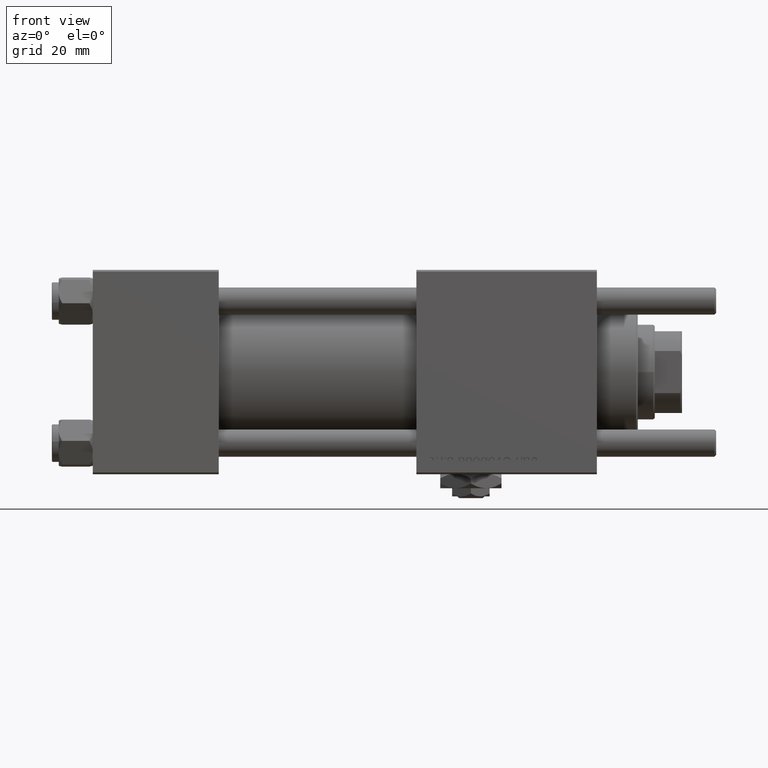
[diagram: clean part render]
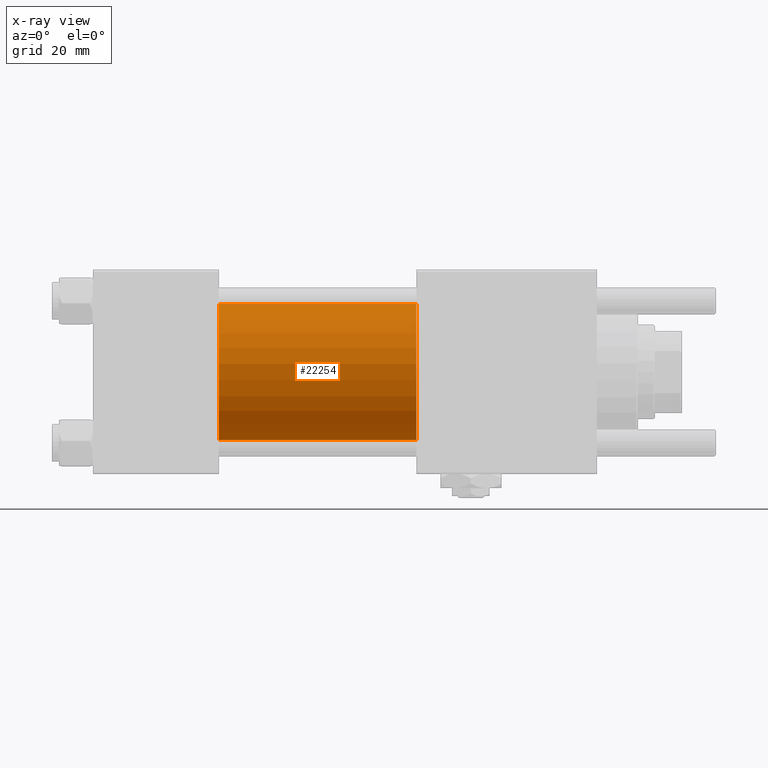
[diagram: x-ray — body ghosted, one internal face saturated and labeled with its STEP entity id]
A machine part, front view, then the same camera in x-ray: the body is ghosted and one INTERNAL B-rep face — a face not visible from any outside direction — is saturated and labeled: STEP entity #22254.
In plain terms, the highlighted cylindrical surface (partial cylindrical patch) has radius 20 mm, axis along (-1, -0, -0).
Its self-contained STEP definition (entity closure, byte-faithful):
#1114 = VERTEX_POINT ( 'NONE', #39013 ) ;
#2021 = DIRECTION ( 'NONE',  ( 0.000000000000000000, 0.000000000000000000, -1.000000000000000000 ) ) ;
#2828 = EDGE_CURVE ( 'NONE', #56042, #22301, #45035, .T. ) ;
#4297 = CARTESIAN_POINT ( 'NONE',  ( 95.00000000000000000, -1.527916156705046464E-16, -20.00000000000000000 ) ) ;
#6861 = DIRECTION ( 'NONE',  ( 1.000000000000000000, 0.000000000000000000, 0.000000000000000000 ) ) ;
#7852 = ORIENTED_EDGE ( 'NONE', *, *, #39973, .F. ) ;
#7976 = VECTOR ( 'NONE', #55148, 1000.000000000000000 ) ;
#10617 = CARTESIAN_POINT ( 'NONE',  ( 95.00000000000000000, -2.602085213965210642E-15, 0.000000000000000000 ) ) ;
#11791 = CARTESIAN_POINT ( 'NONE',  ( 37.00000000000000000, -2.602085213965210642E-15, 0.000000000000000000 ) ) ;
#12192 = DIRECTION ( 'NONE',  ( 0.000000000000000000, 0.000000000000000000, -1.000000000000000000 ) ) ;
#12821 = ORIENTED_EDGE ( 'NONE', *, *, #57076, .T. ) ;
#14503 = CYLINDRICAL_SURFACE ( 'NONE', #35336, 20.00000000000000000 ) ;
#15661 = DIRECTION ( 'NONE',  ( -1.000000000000000000, -0.000000000000000000, -0.000000000000000000 ) ) ;
#18440 = CIRCLE ( 'NONE', #51481, 20.00000000000000000 ) ;
#19337 = CARTESIAN_POINT ( 'NONE',  ( 95.00000000000000000, -2.602085213965210642E-15, 20.00000000000000000 ) ) ;
#19811 = DIRECTION ( 'NONE',  ( 0.000000000000000000, 0.000000000000000000, 1.000000000000000000 ) ) ;
#21095 = CARTESIAN_POINT ( 'NONE',  ( 95.00000000000000000, -2.602085213965210642E-15, 0.000000000000000000 ) ) ;
#21303 = ORIENTED_EDGE ( 'NONE', *, *, #2828, .T. ) ;
#21735 = AXIS2_PLACEMENT_3D ( 'NONE', #21095, #6861, #12192 ) ;
#22254 = ADVANCED_FACE ( 'NONE', ( #55044 ), #14503, .F. ) ;
#22301 = VERTEX_POINT ( 'NONE', #33691 ) ;
#26990 = CARTESIAN_POINT ( 'NONE',  ( 95.00000000000000000, -1.527916156705046464E-16, -20.00000000000000000 ) ) ;
#33691 = CARTESIAN_POINT ( 'NONE',  ( 37.00000000000000000, -1.527916156705046464E-16, -20.00000000000000000 ) ) ;
#34989 = ORIENTED_EDGE ( 'NONE', *, *, #37351, .F. ) ;
#35336 = AXIS2_PLACEMENT_3D ( 'NONE', #10617, #15661, #19811 ) ;
#37351 = EDGE_CURVE ( 'NONE', #1114, #52487, #54561, .T. ) ;
#39013 = CARTESIAN_POINT ( 'NONE',  ( 95.00000000000000000, -2.602085213965210642E-15, 20.00000000000000000 ) ) ;
#39973 = EDGE_CURVE ( 'NONE', #52487, #22301, #18440, .T. ) ;
#41164 = CARTESIAN_POINT ( 'NONE',  ( 37.00000000000000000, -2.602085213965210642E-15, 20.00000000000000000 ) ) ;
#45035 = LINE ( 'NONE', #26990, #58503 ) ;
#47596 = DIRECTION ( 'NONE',  ( 1.000000000000000000, 0.000000000000000000, 0.000000000000000000 ) ) ;
#50619 = EDGE_LOOP ( 'NONE', ( #12821, #21303, #7852, #34989 ) ) ;
#51481 = AXIS2_PLACEMENT_3D ( 'NONE', #11791, #47596, #2021 ) ;
#52487 = VERTEX_POINT ( 'NONE', #41164 ) ;
#53636 = DIRECTION ( 'NONE',  ( -1.000000000000000000, -0.000000000000000000, -0.000000000000000000 ) ) ;
#54561 = LINE ( 'NONE', #19337, #7976 ) ;
#55044 = FACE_OUTER_BOUND ( 'NONE', #50619, .T. ) ;
#55148 = DIRECTION ( 'NONE',  ( -1.000000000000000000, -0.000000000000000000, -0.000000000000000000 ) ) ;
#56042 = VERTEX_POINT ( 'NONE', #4297 ) ;
#57076 = EDGE_CURVE ( 'NONE', #1114, #56042, #57627, .T. ) ;
#57627 = CIRCLE ( 'NONE', #21735, 20.00000000000000000 ) ;
#58503 = VECTOR ( 'NONE', #53636, 1000.000000000000000 ) ;